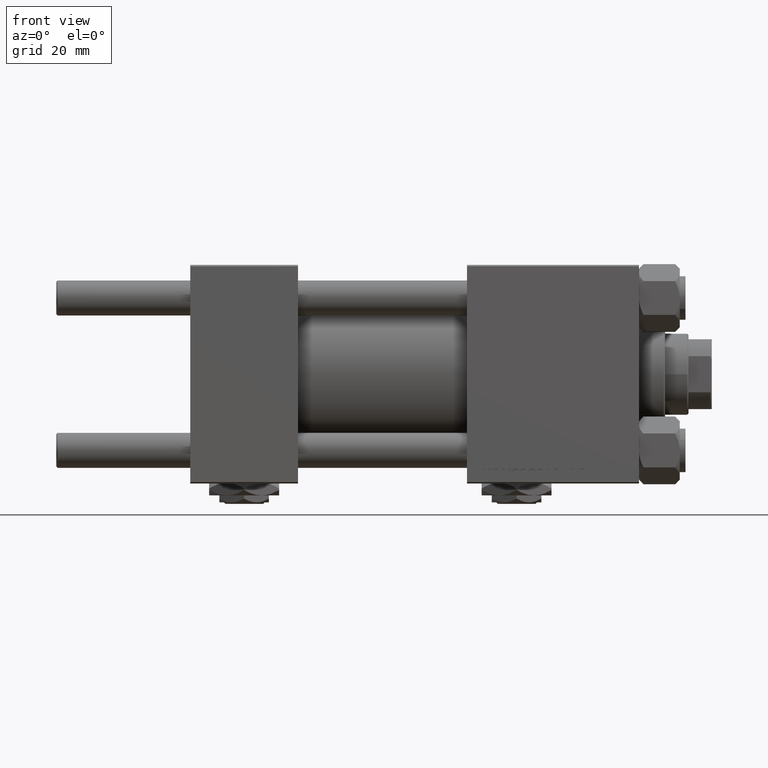
[diagram: clean part render]
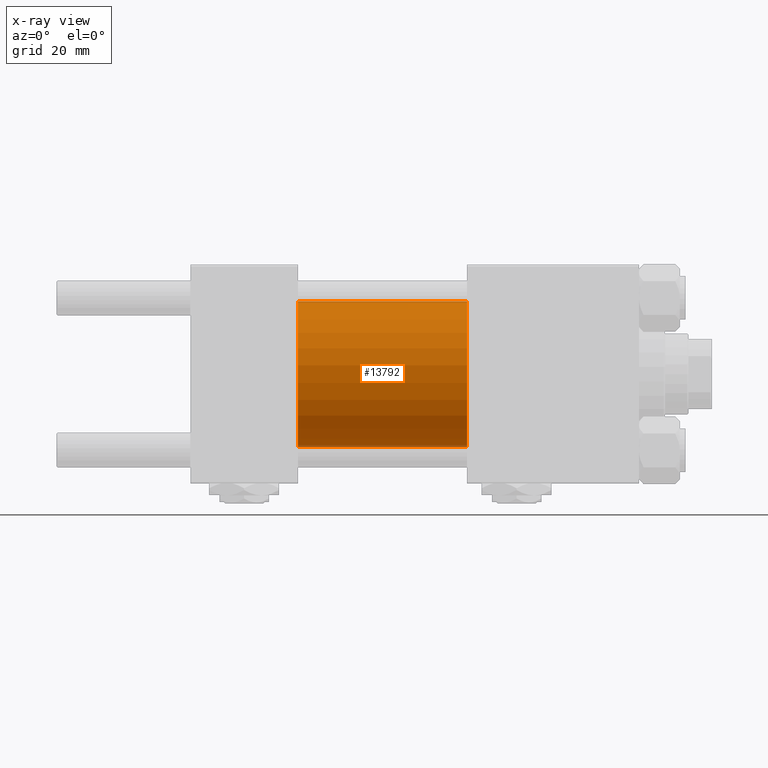
[diagram: x-ray — body ghosted, one internal face saturated and labeled with its STEP entity id]
A machine part, front view, then the same camera in x-ray: the body is ghosted and one INTERNAL B-rep face — a face not visible from any outside direction — is saturated and labeled: STEP entity #13792.
In plain terms, the highlighted cylindrical surface (partial cylindrical patch) has radius 25 mm, axis along (-1, -0, -0).
Its self-contained STEP definition (entity closure, byte-faithful):
#2020 = DIRECTION ( 'NONE',  ( -1.000000000000000000, -0.000000000000000000, -0.000000000000000000 ) ) ;
#3233 = VECTOR ( 'NONE', #2020, 1000.000000000000000 ) ;
#6597 = EDGE_CURVE ( 'NONE', #20349, #9875, #16663, .T. ) ;
#9875 = VERTEX_POINT ( 'NONE', #34280 ) ;
#11243 = ORIENTED_EDGE ( 'NONE', *, *, #6597, .F. ) ;
#11561 = ORIENTED_EDGE ( 'NONE', *, *, #11883, .T. ) ;
#11652 = AXIS2_PLACEMENT_3D ( 'NONE', #51165, #31275, #24982 ) ;
#11883 = EDGE_CURVE ( 'NONE', #32690, #9875, #36724, .T. ) ;
#13172 = CARTESIAN_POINT ( 'NONE',  ( 37.00000000000000000, 0.000000000000000000, 25.00000000000000000 ) ) ;
#13519 = AXIS2_PLACEMENT_3D ( 'NONE', #40229, #16410, #40491 ) ;
#13540 = LINE ( 'NONE', #45462, #3233 ) ;
#13550 = ORIENTED_EDGE ( 'NONE', *, *, #24357, .F. ) ;
#13668 = DIRECTION ( 'NONE',  ( 0.000000000000000000, 0.000000000000000000, 1.000000000000000000 ) ) ;
#13792 = ADVANCED_FACE ( 'NONE', ( #45849 ), #29350, .F. ) ;
#16410 = DIRECTION ( 'NONE',  ( 1.000000000000000000, 0.000000000000000000, 0.000000000000000000 ) ) ;
#16663 = CIRCLE ( 'NONE', #11652, 25.00000000000000000 ) ;
#17197 = VERTEX_POINT ( 'NONE', #38241 ) ;
#20349 = VERTEX_POINT ( 'NONE', #13172 ) ;
#23094 = VECTOR ( 'NONE', #35944, 1000.000000000000000 ) ;
#24357 = EDGE_CURVE ( 'NONE', #17197, #20349, #13540, .T. ) ;
#24982 = DIRECTION ( 'NONE',  ( 0.000000000000000000, 0.000000000000000000, -1.000000000000000000 ) ) ;
#27692 = CIRCLE ( 'NONE', #13519, 25.00000000000000000 ) ;
#29350 = CYLINDRICAL_SURFACE ( 'NONE', #32722, 25.00000000000000000 ) ;
#29524 = ORIENTED_EDGE ( 'NONE', *, *, #47752, .T. ) ;
#31275 = DIRECTION ( 'NONE',  ( 1.000000000000000000, 0.000000000000000000, 0.000000000000000000 ) ) ;
#32690 = VERTEX_POINT ( 'NONE', #38867 ) ;
#32722 = AXIS2_PLACEMENT_3D ( 'NONE', #40625, #48731, #13668 ) ;
#34280 = CARTESIAN_POINT ( 'NONE',  ( 37.00000000000000000, 3.061616997868382254E-15, -25.00000000000000000 ) ) ;
#35944 = DIRECTION ( 'NONE',  ( -1.000000000000000000, -0.000000000000000000, -0.000000000000000000 ) ) ;
#36724 = LINE ( 'NONE', #48235, #23094 ) ;
#37883 = EDGE_LOOP ( 'NONE', ( #29524, #11561, #11243, #13550 ) ) ;
#38241 = CARTESIAN_POINT ( 'NONE',  ( 95.00000000000000000, 0.000000000000000000, 25.00000000000000000 ) ) ;
#38867 = CARTESIAN_POINT ( 'NONE',  ( 95.00000000000000000, 3.061616997868382254E-15, -25.00000000000000000 ) ) ;
#40229 = CARTESIAN_POINT ( 'NONE',  ( 95.00000000000000000, 0.000000000000000000, 0.000000000000000000 ) ) ;
#40491 = DIRECTION ( 'NONE',  ( 0.000000000000000000, 0.000000000000000000, -1.000000000000000000 ) ) ;
#40625 = CARTESIAN_POINT ( 'NONE',  ( 95.00000000000000000, 0.000000000000000000, 0.000000000000000000 ) ) ;
#45462 = CARTESIAN_POINT ( 'NONE',  ( 95.00000000000000000, 0.000000000000000000, 25.00000000000000000 ) ) ;
#45849 = FACE_OUTER_BOUND ( 'NONE', #37883, .T. ) ;
#47752 = EDGE_CURVE ( 'NONE', #17197, #32690, #27692, .T. ) ;
#48235 = CARTESIAN_POINT ( 'NONE',  ( 95.00000000000000000, 3.061616997868382254E-15, -25.00000000000000000 ) ) ;
#48731 = DIRECTION ( 'NONE',  ( -1.000000000000000000, -0.000000000000000000, -0.000000000000000000 ) ) ;
#51165 = CARTESIAN_POINT ( 'NONE',  ( 37.00000000000000000, 0.000000000000000000, 0.000000000000000000 ) ) ;